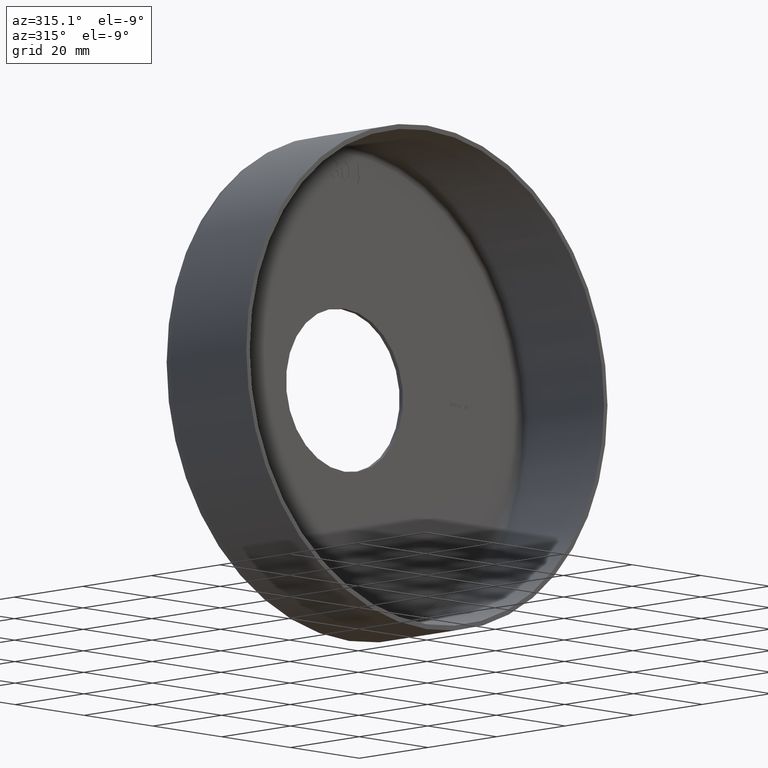
[diagram: clean part render]
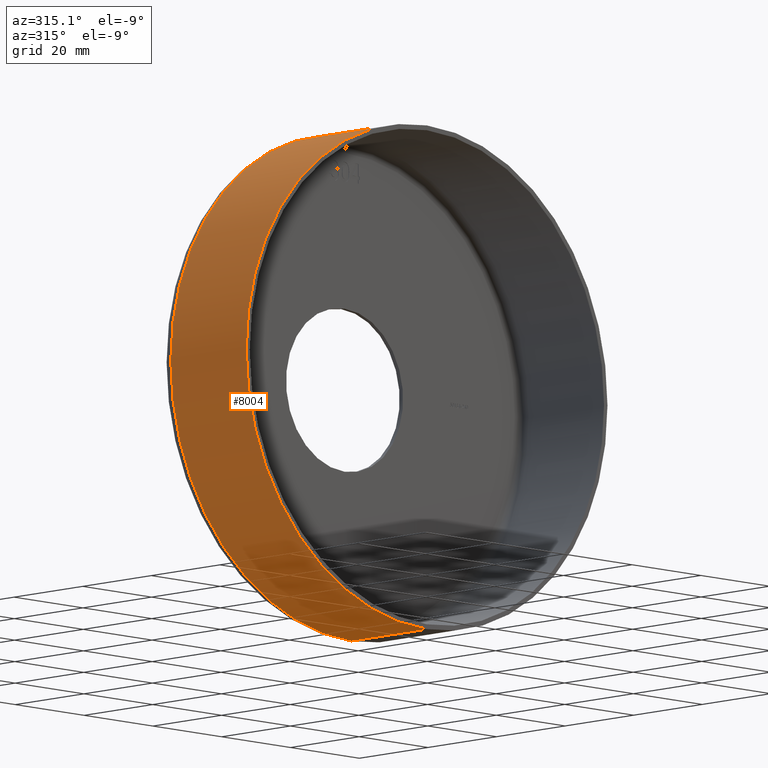
[diagram: same view with one face highlighted and labeled with its STEP entity id]
A machine part, auxiliary view. The second image highlights one B-rep face of the part: STEP entity #8004.
In plain terms, the highlighted cylindrical surface (partial cylindrical patch) has radius 52.5 mm, axis along (-0, -1, -0).
Its self-contained STEP definition (entity closure, byte-faithful):
#354 = VERTEX_POINT ( 'NONE', #4848 ) ;
#371 = CARTESIAN_POINT ( 'NONE',  ( 6.429395695523604744E-15, 0.000000000000000000, 52.50000000000000711 ) ) ;
#411 = LINE ( 'NONE', #371, #11009 ) ;
#643 = DIRECTION ( 'NONE',  ( -0.000000000000000000, -1.000000000000000000, -0.000000000000000000 ) ) ;
#910 = VERTEX_POINT ( 'NONE', #12928 ) ;
#1529 = VERTEX_POINT ( 'NONE', #7813 ) ;
#1654 = EDGE_LOOP ( 'NONE', ( #1662, #12436, #12318, #2864 ) ) ;
#1662 = ORIENTED_EDGE ( 'NONE', *, *, #11172, .F. ) ;
#1756 = CARTESIAN_POINT ( 'NONE',  ( 0.000000000000000000, 22.00000000000000355, -52.50000000000000711 ) ) ;
#1759 = EDGE_CURVE ( 'NONE', #910, #1529, #9852, .T. ) ;
#2139 = FACE_OUTER_BOUND ( 'NONE', #1654, .T. ) ;
#2864 = ORIENTED_EDGE ( 'NONE', *, *, #1759, .F. ) ;
#3673 = LINE ( 'NONE', #9167, #4437 ) ;
#3704 = EDGE_CURVE ( 'NONE', #5353, #1529, #3673, .T. ) ;
#4133 = DIRECTION ( 'NONE',  ( -0.000000000000000000, -1.000000000000000000, -0.000000000000000000 ) ) ;
#4437 = VECTOR ( 'NONE', #12180, 1000.000000000000000 ) ;
#4848 = CARTESIAN_POINT ( 'NONE',  ( 6.429395695523604744E-15, 22.00000000000000355, 52.50000000000000711 ) ) ;
#5182 = DIRECTION ( 'NONE',  ( 0.000000000000000000, 0.000000000000000000, -1.000000000000000000 ) ) ;
#5353 = VERTEX_POINT ( 'NONE', #1756 ) ;
#5362 = AXIS2_PLACEMENT_3D ( 'NONE', #9637, #13308, #6153 ) ;
#6153 = DIRECTION ( 'NONE',  ( 0.000000000000000000, 0.000000000000000000, -1.000000000000000000 ) ) ;
#6423 = DIRECTION ( 'NONE',  ( 0.000000000000000000, 0.000000000000000000, -1.000000000000000000 ) ) ;
#7544 = CARTESIAN_POINT ( 'NONE',  ( 0.000000000000000000, 0.000000000000000000, 0.000000000000000000 ) ) ;
#7813 = CARTESIAN_POINT ( 'NONE',  ( 0.000000000000000000, 0.000000000000000000, -52.50000000000000711 ) ) ;
#8004 = ADVANCED_FACE ( 'NONE', ( #2139 ), #15382, .T. ) ;
#8619 = CIRCLE ( 'NONE', #10921, 52.50000000000000711 ) ;
#8709 = DIRECTION ( 'NONE',  ( -0.000000000000000000, -1.000000000000000000, -0.000000000000000000 ) ) ;
#9008 = EDGE_CURVE ( 'NONE', #354, #5353, #8619, .T. ) ;
#9033 = AXIS2_PLACEMENT_3D ( 'NONE', #7544, #8709, #5182 ) ;
#9167 = CARTESIAN_POINT ( 'NONE',  ( 0.000000000000000000, 0.000000000000000000, -52.50000000000000711 ) ) ;
#9637 = CARTESIAN_POINT ( 'NONE',  ( 0.000000000000000000, 0.000000000000000000, 0.000000000000000000 ) ) ;
#9852 = CIRCLE ( 'NONE', #9033, 52.50000000000000711 ) ;
#10108 = CARTESIAN_POINT ( 'NONE',  ( 0.000000000000000000, 22.00000000000000355, 0.000000000000000000 ) ) ;
#10921 = AXIS2_PLACEMENT_3D ( 'NONE', #10108, #643, #6423 ) ;
#11009 = VECTOR ( 'NONE', #4133, 1000.000000000000000 ) ;
#11172 = EDGE_CURVE ( 'NONE', #354, #910, #411, .T. ) ;
#12180 = DIRECTION ( 'NONE',  ( -0.000000000000000000, -1.000000000000000000, -0.000000000000000000 ) ) ;
#12318 = ORIENTED_EDGE ( 'NONE', *, *, #3704, .T. ) ;
#12436 = ORIENTED_EDGE ( 'NONE', *, *, #9008, .T. ) ;
#12928 = CARTESIAN_POINT ( 'NONE',  ( 6.429395695523604744E-15, 0.000000000000000000, 52.50000000000000711 ) ) ;
#13308 = DIRECTION ( 'NONE',  ( -0.000000000000000000, -1.000000000000000000, -0.000000000000000000 ) ) ;
#15382 = CYLINDRICAL_SURFACE ( 'NONE', #5362, 52.50000000000000711 ) ;